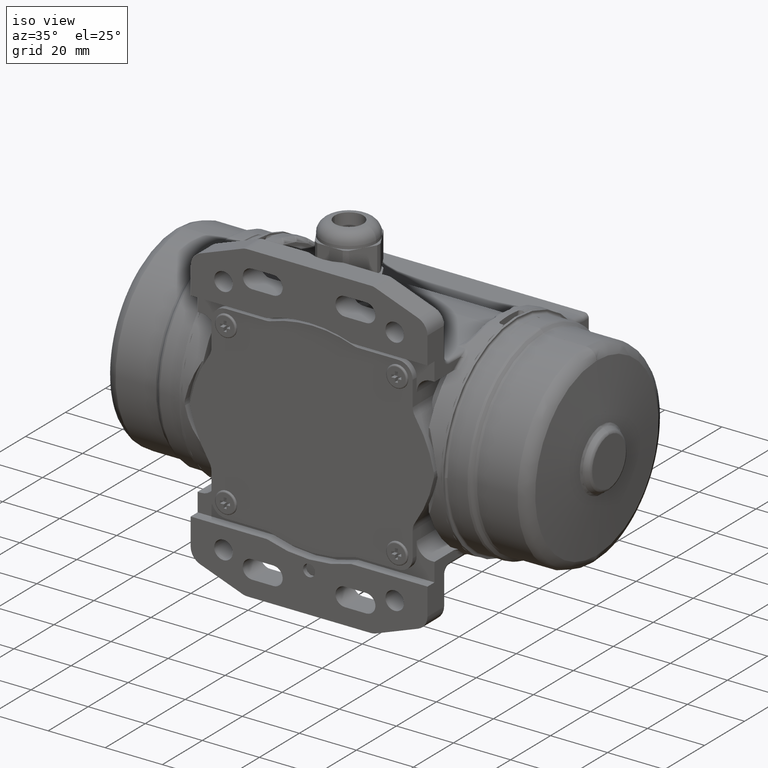
[diagram: clean part render]
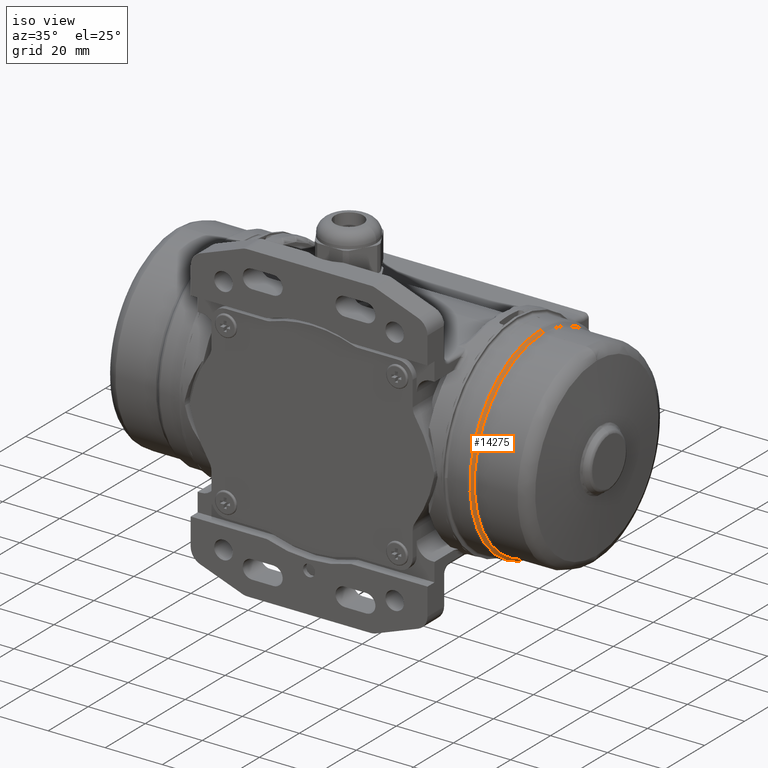
[diagram: same view with one face highlighted and labeled with its STEP entity id]
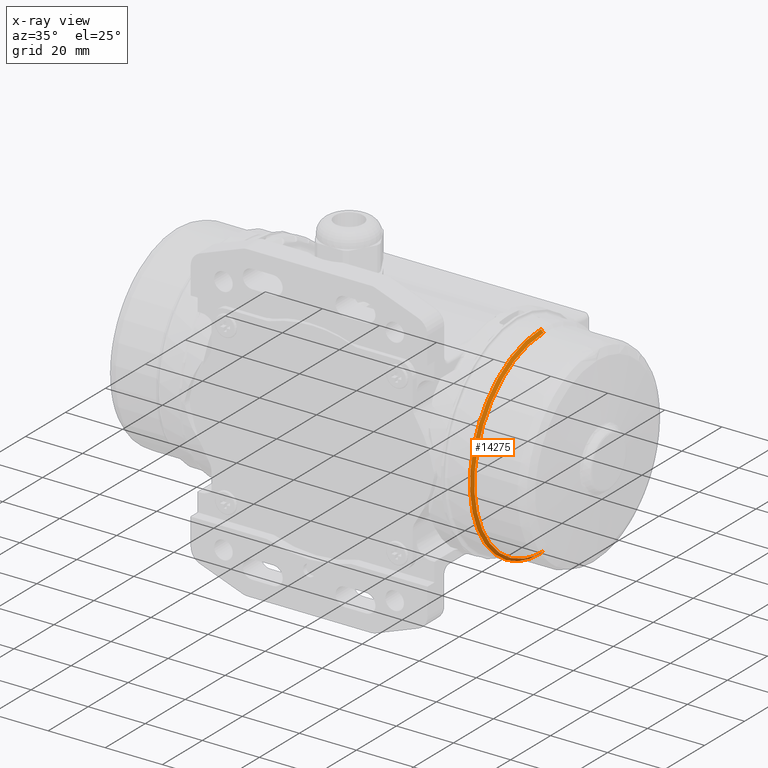
[diagram: x-ray of the same camera — body ghosted, the highlighted face saturated]
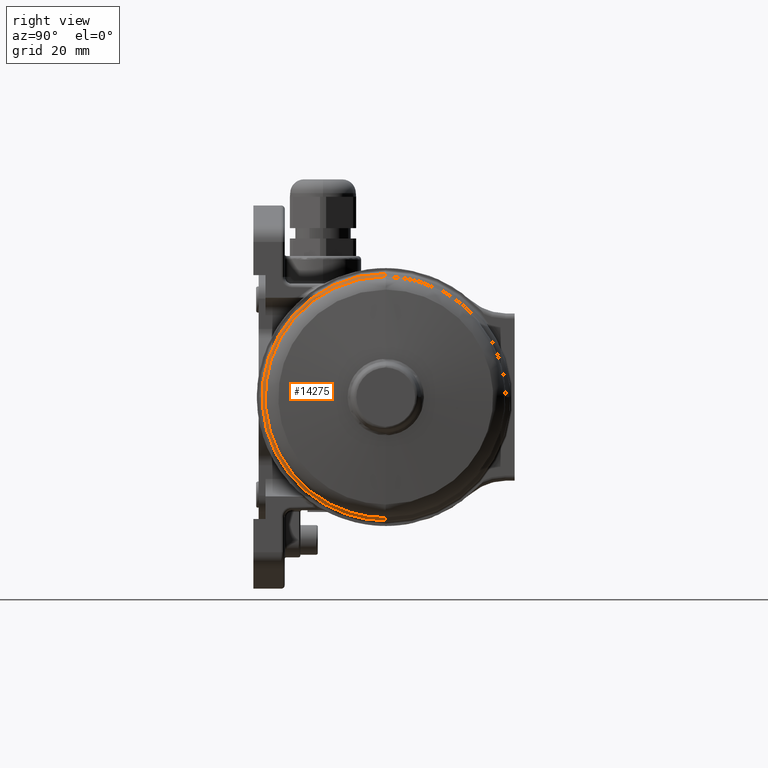
[diagram: same view with one face highlighted and labeled with its STEP entity id]
A machine part, iso view. The second image highlights one B-rep face of the part: STEP entity #14275.
The next image is the same camera in x-ray: the body ghosted, the highlighted face saturated — about 1% of this face is hidden behind the body in this view.
A second angle (right view) of the same face is appended — the face is thin or edge-on in the first view.
In plain terms, the highlighted conical surface has half-angle 45 deg.
Its self-contained STEP definition (entity closure, byte-faithful):
#12263 = CARTESIAN_POINT ( 'NONE',  ( 55.53847763339929600, 3.725061443347074500E-014, 34.59289320623450000 ) ) ;
#12469 = FACE_OUTER_BOUND ( 'NONE', #13771, .T. ) ;
#12471 = AXIS2_PLACEMENT_3D ( 'NONE', #12486, #12475, #12496 ) ;
#12475 = DIRECTION ( 'NONE',  ( -1.000000000000000000, 1.954246786497759600E-016, -3.908436590050210200E-016 ) ) ;
#12486 = CARTESIAN_POINT ( 'NONE',  ( 54.62426407002950400, -3.523675584826924400E-015, -4.214514780785039800E-019 ) ) ;
#12491 = CONICAL_SURFACE ( 'NONE', #12471, 35.50710677987704900, 0.7853981633980938700 ) ;
#12496 = DIRECTION ( 'NONE',  ( -3.908453565042201200E-016, -2.775557561562890100E-017, 1.000000000000000000 ) ) ;
#12826 = CARTESIAN_POINT ( 'NONE',  ( 55.53847764244019200, -1.838527311486195000E-014, -34.59289320131180300 ) ) ;
#13771 = EDGE_LOOP ( 'NONE', ( #14426, #14430, #14546, #14531, #14425, #14556 ) ) ;
#14199 = VERTEX_POINT ( 'NONE', #12263 ) ;
#14275 = ADVANCED_FACE ( 'NONE', ( #12469 ), #12491, .T. ) ;
#14347 = VERTEX_POINT ( 'NONE', #12826 ) ;
#14390 = EDGE_CURVE ( 'NONE', #14451, #14568, #16902, .T. ) ;
#14424 = EDGE_CURVE ( 'NONE', #14483, #14347, #17178, .T. ) ;
#14425 = ORIENTED_EDGE ( 'NONE', *, *, #14462, .T. ) ;
#14426 = ORIENTED_EDGE ( 'NONE', *, *, #14533, .F. ) ;
#14430 = ORIENTED_EDGE ( 'NONE', *, *, #14438, .T. ) ;
#14438 = EDGE_CURVE ( 'NONE', #14199, #14451, #17554, .T. ) ;
#14451 = VERTEX_POINT ( 'NONE', #17982 ) ;
#14462 = EDGE_CURVE ( 'NONE', #14688, #14347, #18044, .T. ) ;
#14483 = VERTEX_POINT ( 'NONE', #18502 ) ;
#14511 = EDGE_CURVE ( 'NONE', #14688, #14568, #18963, .T. ) ;
#14531 = ORIENTED_EDGE ( 'NONE', *, *, #14511, .F. ) ;
#14533 = EDGE_CURVE ( 'NONE', #14199, #14483, #19472, .T. ) ;
#14546 = ORIENTED_EDGE ( 'NONE', *, *, #14390, .T. ) ;
#14556 = ORIENTED_EDGE ( 'NONE', *, *, #14424, .F. ) ;
#14568 = VERTEX_POINT ( 'NONE', #20765 ) ;
#14688 = VERTEX_POINT ( 'NONE', #21510 ) ;
#16868 = CARTESIAN_POINT ( 'NONE',  ( 54.62426407925266100, -35.50649461831756800, 2.332881440709562200 ) ) ;
#16870 = CARTESIAN_POINT ( 'NONE',  ( 54.62426407925266900, -35.27707864555615200, 4.656309497044540900 ) ) ;
#16871 = CARTESIAN_POINT ( 'NONE',  ( 54.62426407925265400, -34.36942753135566900, 9.213899666477379600 ) ) ;
#16873 = CARTESIAN_POINT ( 'NONE',  ( 54.62426407925265400, -33.69121481836977900, 11.44794915954303400 ) ) ;
#16875 = CARTESIAN_POINT ( 'NONE',  ( 54.62426407925265400, -31.91200332483949600, 15.74095104154937800 ) ) ;
#16877 = CARTESIAN_POINT ( 'NONE',  ( 54.62426407925264000, -30.81104850938374900, 17.79979734854930100 ) ) ;
#16878 = CARTESIAN_POINT ( 'NONE',  ( 54.62426407925264700, -28.22862792228576400, 21.66328833584988100 ) ) ;
#16879 = CARTESIAN_POINT ( 'NONE',  ( 54.62426407925265400, -26.74722596337763700, 23.46783754761051500 ) ) ;
#16880 = CARTESIAN_POINT ( 'NONE',  ( 54.62426407925264700, -23.46080414425541200, 26.75339538828498900 ) ) ;
#16882 = CARTESIAN_POINT ( 'NONE',  ( 54.62426407925264000, -21.65586549295155500, 28.23432282963787900 ) ) ;
#16884 = CARTESIAN_POINT ( 'NONE',  ( 54.62426407925264700, -17.79169564875121900, 30.81572750786889300 ) ) ;
#16885 = CARTESIAN_POINT ( 'NONE',  ( 54.62426407925264700, -15.73255994116962400, 31.91614095711644300 ) ) ;
#16886 = CARTESIAN_POINT ( 'NONE',  ( 54.62426407925266100, -11.43909040319672400, 33.69422363914198100 ) ) ;
#16887 = CARTESIAN_POINT ( 'NONE',  ( 54.62426407925264700, -9.204862666302176400, 34.37184893472472400 ) ) ;
#16888 = CARTESIAN_POINT ( 'NONE',  ( 54.62426407925264000, -4.647034007595947500, 35.27830169990141900 ) ) ;
#16889 = CARTESIAN_POINT ( 'NONE',  ( 54.62426407925265400, -2.323545711709670100, 35.50710677065390500 ) ) ;
#16891 = CARTESIAN_POINT ( 'NONE',  ( 54.62426407422820100, 4.023871818811045000E-014, 35.50710676513529800 ) ) ;
#16902 = B_SPLINE_CURVE_WITH_KNOTS ( 'NONE', 3,
 ( #16891, #16889, #16888, #16887, #16886, #16885, #16884, #16882, #16880, #16879, #16878, #16877, #16875, #16873, #16871, #16870, #16868, #16993, #16991, #16988, #16987, #16985, #16984, #16982, #16979, #16977, #16976, #16975, #16974, #16972, #16971, #16969, #16968, #16967 ),
 .UNSPECIFIED., .F., .F.,
 ( 4, 2, 2, 2, 2, 2, 2, 2, 2, 2, 2, 2, 2, 2, 2, 2, 4 ),
 ( 0.0000000000000000000, 0.06250000000000011100, 0.1250000000000001900, 0.1875000000000002200, 0.2500000000000002200, 0.3125000000000002200, 0.3750000000000002200, 0.4375000000000001700, 0.5000000000000001100, 0.5625000000000001100, 0.6250000000000001100, 0.6875000000000001100, 0.7500000000000001100, 0.8125000000000001100, 0.8750000000000001100, 0.9375000000000001100, 1.000000000000000000 ),
 .UNSPECIFIED. ) ;
#16967 = CARTESIAN_POINT ( 'NONE',  ( 54.62426407013539600, -0.01867161798807439800, -35.50710187048150600 ) ) ;
#16968 = CARTESIAN_POINT ( 'NONE',  ( 54.62426407925265400, -2.342217008434520900, -35.50588001137869300 ) ) ;
#16969 = CARTESIAN_POINT ( 'NONE',  ( 54.62426407925267600, -4.665584664597092900, -35.27585315246813700 ) ) ;
#16971 = CARTESIAN_POINT ( 'NONE',  ( 54.62426407925267600, -9.222936029685401500, -34.36700375199082900 ) ) ;
#16972 = CARTESIAN_POINT ( 'NONE',  ( 54.62426407925266900, -11.45680712447986800, -33.68820366848741100 ) ) ;
#16974 = CARTESIAN_POINT ( 'NONE',  ( 54.62426407925266900, -15.74934105373979800, -31.90786348645121300 ) ) ;
#16975 = CARTESIAN_POINT ( 'NONE',  ( 54.62426407925266100, -17.80789781782782200, -30.80636738089747000 ) ) ;
#16976 = CARTESIAN_POINT ( 'NONE',  ( 54.62426407925266900, -21.67070968114133600, -28.22293106345810200 ) ) ;
#16977 = CARTESIAN_POINT ( 'NONE',  ( 54.62426407925266100, -23.47486932860824300, -26.74105468940574000 ) ) ;
#16979 = CARTESIAN_POINT ( 'NONE',  ( 54.62426407925266900, -26.75956296370083700, -23.45376911902969400 ) ) ;
#16982 = CARTESIAN_POINT ( 'NONE',  ( 54.62426407925266100, -28.24001578512040200, -21.64844115295999300 ) ) ;
#16984 = CARTESIAN_POINT ( 'NONE',  ( 54.62426407925266900, -30.82040437602918100, -17.78359271899416400 ) ) ;
#16985 = CARTESIAN_POINT ( 'NONE',  ( 54.62426407925266100, -31.92027638299577700, -15.72416775318117400 ) ) ;
#16987 = CARTESIAN_POINT ( 'NONE',  ( 54.62426407925266900, -33.69723013059579800, -11.43023085605395500 ) ) ;
#16988 = CARTESIAN_POINT ( 'NONE',  ( 54.62426407925264000, -34.37426796193044300, -9.195825029785094500 ) ) ;
#16991 = CARTESIAN_POINT ( 'NONE',  ( 54.62426407925265400, -35.27952231541934200, -4.637758196893139000 ) ) ;
#16993 = CARTESIAN_POINT ( 'NONE',  ( 54.62426407925266100, -35.50771646834536500, -2.314209822080825600 ) ) ;
#17086 = CARTESIAN_POINT ( 'NONE',  ( 55.53847763570399800, -3.702335477116144800E-015, 3.568931236421940200E-016 ) ) ;
#17165 = DIRECTION ( 'NONE',  ( -4.011745337946250600E-016, -2.775557561562889500E-017, 1.000000000000000000 ) ) ;
#17167 = DIRECTION ( 'NONE',  ( 1.000000000000000000, -1.954246786497759600E-016, 3.908436590050210200E-016 ) ) ;
#17168 = AXIS2_PLACEMENT_3D ( 'NONE', #17086, #17167, #17165 ) ;
#17178 = CIRCLE ( 'NONE', #17168, 34.59289321420130400 ) ;
#17540 = DIRECTION ( 'NONE',  ( -0.7071067811860920500, 1.185599597456649900E-016, 0.7071067811870029900 ) ) ;
#17541 = VECTOR ( 'NONE', #17540, 1000.000000000000000 ) ;
#17543 = CARTESIAN_POINT ( 'NONE',  ( 54.62426406870760300, -4.509195771726369200E-015, 35.50710678119894900 ) ) ;
#17554 = LINE ( 'NONE', #17543, #17541 ) ;
#17937 = VECTOR ( 'NONE', #17949, 1000.000000000000100 ) ;
#17949 = DIRECTION ( 'NONE',  ( 0.7071067811860910500, 6.961347481692348000E-017, 0.7071067811870038700 ) ) ;
#17950 = CARTESIAN_POINT ( 'NONE',  ( 54.62426406870760300, -1.395825553492466000E-014, -35.50710678119894900 ) ) ;
#17982 = CARTESIAN_POINT ( 'NONE',  ( 54.62426407422820100, 4.023871818811045000E-014, 35.50710676513529800 ) ) ;
#18044 = LINE ( 'NONE', #17950, #17937 ) ;
#18502 = CARTESIAN_POINT ( 'NONE',  ( 55.53847763231920000, -0.01819087348532924900, -34.59288843469759900 ) ) ;
#18945 = DIRECTION ( 'NONE',  ( -3.908453565042201200E-016, -2.775557561562890100E-017, 1.000000000000000000 ) ) ;
#18946 = DIRECTION ( 'NONE',  ( -1.000000000000000000, 1.954246786497759600E-016, -3.908436590050210200E-016 ) ) ;
#18947 = AXIS2_PLACEMENT_3D ( 'NONE', #18956, #18946, #18945 ) ;
#18956 = CARTESIAN_POINT ( 'NONE',  ( 54.62426407002950400, -3.523675584826924400E-015, -4.214514780757920300E-019 ) ) ;
#18963 = CIRCLE ( 'NONE', #18947, 35.50710677987704900 ) ;
#19439 = CARTESIAN_POINT ( 'NONE',  ( 55.53847763108822000, -28.95851773856324500, -19.32744354723047700 ) ) ;
#19440 = CARTESIAN_POINT ( 'NONE',  ( 55.53847763108822000, -32.17268863676494600, -13.30654949501839300 ) ) ;
#19441 = CARTESIAN_POINT ( 'NONE',  ( 55.53847763108822000, -34.15046536820182900, -6.774273111045286700 ) ) ;
#19442 = CARTESIAN_POINT ( 'NONE',  ( 55.53847763108822000, -34.81591777816387900, 0.01826351831615038700 ) ) ;
#19443 = CARTESIAN_POINT ( 'NONE',  ( 55.53847763108822000, -34.14319413471417900, 6.810364278696615900 ) ) ;
#19444 = CARTESIAN_POINT ( 'NONE',  ( 55.53847763108822000, -32.15918721032194600, 13.33975387921367400 ) ) ;
#19445 = CARTESIAN_POINT ( 'NONE',  ( 55.53847763108822000, -29.47276550076989600, 18.35800988038388900 ) ) ;
#19446 = CARTESIAN_POINT ( 'NONE',  ( 55.53847763108822000, -26.77200969822365600, 21.99477180118727700 ) ) ;
#19447 = CARTESIAN_POINT ( 'NONE',  ( 55.53847763108822000, -23.72837657979616600, 25.34999169101775600 ) ) ;
#19448 = CARTESIAN_POINT ( 'NONE',  ( 55.53847763108822000, -19.32767628857863000, 28.95891772938064800 ) ) ;
#19449 = CARTESIAN_POINT ( 'NONE',  ( 55.53847763108822000, -14.30671463716753400, 31.63824017551957700 ) ) ;
#19450 = CARTESIAN_POINT ( 'NONE',  ( 55.53847763108822000, -10.04027479721500200, 33.16173085203924800 ) ) ;
#19463 = CARTESIAN_POINT ( 'NONE',  ( 55.53847763108822000, -5.652625325321426300, 34.25904427172263000 ) ) ;
#19466 = CARTESIAN_POINT ( 'NONE',  ( 55.53847763108822000, -2.254444252180804600, 34.59288301911749400 ) ) ;
#19467 = CARTESIAN_POINT ( 'NONE',  ( 55.53847763339929600, 3.725061443347074500E-014, 34.59289320623450000 ) ) ;
#19472 = B_SPLINE_CURVE_WITH_KNOTS ( 'NONE', 3,
 ( #19467, #19466, #19463, #19450, #19449, #19448, #19447, #19446, #19445, #19444, #19443, #19442, #19441, #19440, #19439, #19547, #19546, #19544, #19542, #19540, #19539 ),
 .UNSPECIFIED., .F., .F.,
 ( 4, 1, 1, 1, 1, 1, 1, 1, 1, 1, 1, 1, 1, 1, 1, 1, 1, 1, 4 ),
 ( 0.0000000000000000000, 0.06233340095364667300, 0.09362161721170400600, 0.1249098334697613100, 0.1874108899323860800, 0.2499119463950110500, 0.2812001626530683000, 0.3124883789111254600, 0.3749894353737508500, 0.4374904918363753400, 0.4999915482990002800, 0.5624926047616253300, 0.6249936612242503700, 0.6874947176868753100, 0.7499957741495000300, 0.8124968306121250800, 0.8749978870747500100, 0.9374989435373750600, 1.000000000000000000 ),
 .UNSPECIFIED. ) ;
#19539 = CARTESIAN_POINT ( 'NONE',  ( 55.53847763231920000, -0.01819087348532924900, -34.59288843469759900 ) ) ;
#19540 = CARTESIAN_POINT ( 'NONE',  ( 55.53847763108822000, -2.282271344303942900, -34.59169785592008900 ) ) ;
#19542 = CARTESIAN_POINT ( 'NONE',  ( 55.53847763108822000, -6.810197762145556100, -34.14333176516732500 ) ) ;
#19544 = CARTESIAN_POINT ( 'NONE',  ( 55.53847763108822000, -13.34037532835095300, -32.15867356537649600 ) ) ;
#19546 = CARTESIAN_POINT ( 'NONE',  ( 55.53847763108822000, -19.35788967110663700, -28.93817547631124400 ) ) ;
#19547 = CARTESIAN_POINT ( 'NONE',  ( 55.53847763108822000, -24.63149147339121800, -24.60559989993025500 ) ) ;
#20765 = CARTESIAN_POINT ( 'NONE',  ( 54.62426407013539600, -0.01867161798807439800, -35.50710187048150600 ) ) ;
#21510 = CARTESIAN_POINT ( 'NONE',  ( 54.62426405971839200, -4.140608126643394900E-015, -35.50710678387215300 ) ) ;